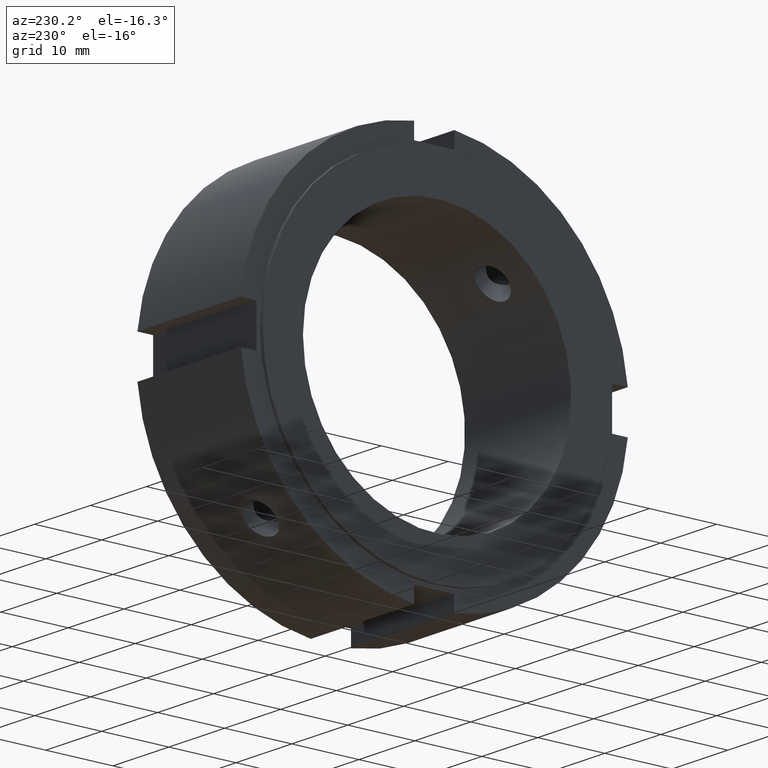
[diagram: clean part render]
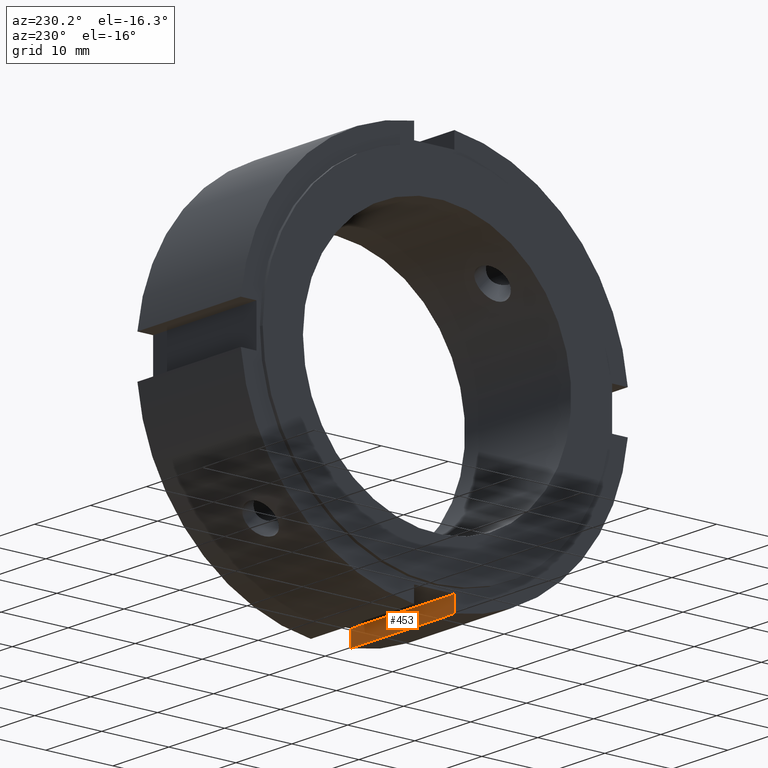
[diagram: same view with one face highlighted and labeled with its STEP entity id]
A machine part, auxiliary view. The second image highlights one B-rep face of the part: STEP entity #453.
In plain terms, the highlighted planar face has unit normal (0, -1, 0).
Its self-contained STEP definition (entity closure, byte-faithful):
#414=CARTESIAN_POINT('',(18.999999999999993,-3.000000000000004,-26.500000000000004));
#415=DIRECTION('',(0.0,-1.0,0.0));
#416=DIRECTION('',(-1.0,0.0,0.0));
#417=AXIS2_PLACEMENT_3D('',#414,#415,#416);
#418=PLANE('',#417);
#419=CARTESIAN_POINT('',(0.499999999999994,-3.000000000000004,-26.500000000000004));
#420=VERTEX_POINT('',#419);
#421=CARTESIAN_POINT('',(0.499999999999994,-3.000000000000004,-28.844410203711917));
#422=VERTEX_POINT('',#421);
#423=CARTESIAN_POINT('',(0.499999999999994,-3.000000000000003,-26.500000000000004));
#424=DIRECTION('',(0.0,0.0,-1.0));
#425=VECTOR('',#424,2.344410203711913);
#426=LINE('',#423,#425);
#427=EDGE_CURVE('',#420,#422,#426,.T.);
#428=ORIENTED_EDGE('',*,*,#427,.F.);
#429=CARTESIAN_POINT('',(18.999999999999993,-3.000000000000004,-26.500000000000004));
#430=VERTEX_POINT('',#429);
#431=CARTESIAN_POINT('',(18.999999999999993,-3.000000000000004,-26.500000000000004));
#432=DIRECTION('',(-1.0,0.0,0.0));
#433=VECTOR('',#432,18.5);
#434=LINE('',#431,#433);
#435=EDGE_CURVE('',#430,#420,#434,.T.);
#436=ORIENTED_EDGE('',*,*,#435,.F.);
#437=CARTESIAN_POINT('',(18.999999999999993,-3.000000000000004,-28.844410203711917));
#438=VERTEX_POINT('',#437);
#439=CARTESIAN_POINT('',(18.999999999999993,-3.000000000000003,-28.844410203711917));
#440=DIRECTION('',(0.0,0.0,1.0));
#441=VECTOR('',#440,2.344410203711913);
#442=LINE('',#439,#441);
#443=EDGE_CURVE('',#438,#430,#442,.T.);
#444=ORIENTED_EDGE('',*,*,#443,.F.);
#445=CARTESIAN_POINT('',(0.499999999999993,-3.000000000000005,-28.844410203711917));
#446=DIRECTION('',(1.0,0.0,0.0));
#447=VECTOR('',#446,18.5);
#448=LINE('',#445,#447);
#449=EDGE_CURVE('',#422,#438,#448,.T.);
#450=ORIENTED_EDGE('',*,*,#449,.F.);
#451=EDGE_LOOP('',(#428,#436,#444,#450));
#452=FACE_OUTER_BOUND('',#451,.T.);
#453=ADVANCED_FACE('',(#452),#418,.F.);